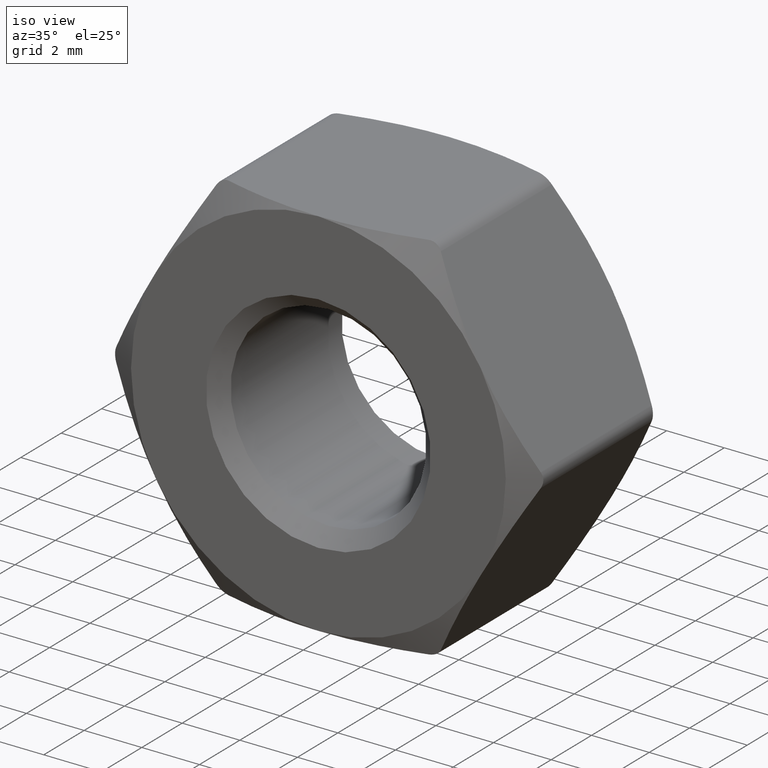
[diagram: clean part render]
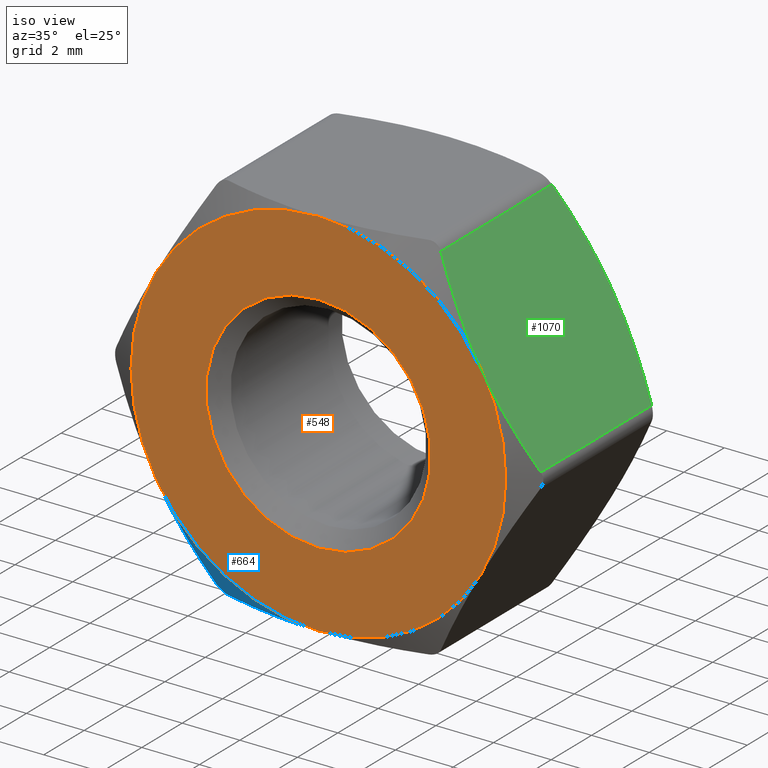
[diagram: same view with three faces highlighted in distinct colors, each labeled with its STEP entity id]
A machine part, iso view with three faces highlighted in distinct colors.
Their STEP definitions:

[orange] entity #548 — the highlighted planar face has unit normal (0, 1, 0).
#43 = ORIENTED_EDGE ( 'NONE', *, *, #1455, .T. ) ;
#52 = DIRECTION ( 'NONE',  ( -0.0000000000000000000, -1.000000000000000000, -0.0000000000000000000 ) ) ;
#65 = EDGE_LOOP ( 'NONE', ( #859 ) ) ;
#80 = AXIS2_PLACEMENT_3D ( 'NONE', #1158, #896, #1403 ) ;
#88 = ORIENTED_EDGE ( 'NONE', *, *, #1248, .T. ) ;
#120 = DIRECTION ( 'NONE',  ( 1.000000000000000000, -1.334402673828313300E-016, 0.0000000000000000000 ) ) ;
#143 = FACE_OUTER_BOUND ( 'NONE', #975, .T. ) ;
#144 = VERTEX_POINT ( 'NONE', #215 ) ;
#189 = CARTESIAN_POINT ( 'NONE',  ( -3.386450907888041400E-016, -3.250000000000000000, 1.173101005959981900E-015 ) ) ;
#201 = CARTESIAN_POINT ( 'NONE',  ( 0.0000000000000000000, -3.250000000000000000, 0.0000000000000000000 ) ) ;
#215 = CARTESIAN_POINT ( 'NONE',  ( -3.386450907888040000E-016, -3.249999999999998700, -6.499999999999999100 ) ) ;
#216 = AXIS2_PLACEMENT_3D ( 'NONE', #1112, #862, #120 ) ;
#257 = VERTEX_POINT ( 'NONE', #1442 ) ;
#302 = ORIENTED_EDGE ( 'NONE', *, *, #1026, .T. ) ;
#304 = EDGE_CURVE ( 'NONE', #873, #997, #1629, .T. ) ;
#342 = ORIENTED_EDGE ( 'NONE', *, *, #621, .T. ) ;
#406 = CARTESIAN_POINT ( 'NONE',  ( -3.386450907888041400E-016, -3.250000000000000000, 1.173101005959981900E-015 ) ) ;
#493 = AXIS2_PLACEMENT_3D ( 'NONE', #406, #770, #520 ) ;
#510 = DIRECTION ( 'NONE',  ( 0.0000000000000000000, 0.0000000000000000000, 1.000000000000000000 ) ) ;
#518 = CARTESIAN_POINT ( 'NONE',  ( -3.386450907888041400E-016, -3.250000000000000000, 1.173101005959981900E-015 ) ) ;
#520 = DIRECTION ( 'NONE',  ( 0.0000000000000000000, 0.0000000000000000000, 1.000000000000000000 ) ) ;
#543 = CIRCLE ( 'NONE', #781, 6.499999999999997300 ) ;
#548 = ADVANCED_FACE ( 'NONE', ( #874, #143 ), #1024, .F. ) ;
#621 = EDGE_CURVE ( 'NONE', #837, #873, #653, .T. ) ;
#653 = CIRCLE ( 'NONE', #493, 6.499999999999997300 ) ;
#657 = CARTESIAN_POINT ( 'NONE',  ( 5.629165124598849900, -3.249999999999999100, -3.250000000000001300 ) ) ;
#702 = CIRCLE ( 'NONE', #80, 6.499999999999997300 ) ;
#765 = DIRECTION ( 'NONE',  ( 0.0000000000000000000, 1.000000000000000000, 0.0000000000000000000 ) ) ;
#770 = DIRECTION ( 'NONE',  ( -0.0000000000000000000, -1.000000000000000000, -0.0000000000000000000 ) ) ;
#773 = CIRCLE ( 'NONE', #1043, 6.499999999999997300 ) ;
#781 = AXIS2_PLACEMENT_3D ( 'NONE', #518, #1288, #510 ) ;
#793 = CARTESIAN_POINT ( 'NONE',  ( 5.629165124598850800, -3.249999999999999100, 3.249999999999999600 ) ) ;
#827 = DIRECTION ( 'NONE',  ( 0.0000000000000000000, 0.0000000000000000000, 1.000000000000000000 ) ) ;
#831 = CARTESIAN_POINT ( 'NONE',  ( -3.386450907888040000E-016, -3.249999999999998700, 6.499999999999999100 ) ) ;
#837 = VERTEX_POINT ( 'NONE', #657 ) ;
#839 = AXIS2_PLACEMENT_3D ( 'NONE', #189, #52, #1080 ) ;
#843 = CARTESIAN_POINT ( 'NONE',  ( -3.386450907888041400E-016, -3.250000000000000000, 1.173101005959981900E-015 ) ) ;
#847 = DIRECTION ( 'NONE',  ( 1.776356839400250500E-015, 0.0000000000000000000, 1.000000000000000000 ) ) ;
#859 = ORIENTED_EDGE ( 'NONE', *, *, #905, .T. ) ;
#862 = DIRECTION ( 'NONE',  ( -1.041984894734782400E-016, -1.000000000000000000, -0.0000000000000000000 ) ) ;
#873 = VERTEX_POINT ( 'NONE', #793 ) ;
#874 = FACE_BOUND ( 'NONE', #65, .T. ) ;
#876 = VERTEX_POINT ( 'NONE', #1547 ) ;
#895 = CIRCLE ( 'NONE', #1499, 3.899999999999999500 ) ;
#896 = DIRECTION ( 'NONE',  ( -0.0000000000000000000, -1.000000000000000000, -0.0000000000000000000 ) ) ;
#905 = EDGE_CURVE ( 'NONE', #1260, #1260, #895, .T. ) ;
#937 = CIRCLE ( 'NONE', #839, 6.499999999999997300 ) ;
#975 = EDGE_LOOP ( 'NONE', ( #1495, #43, #302, #1335, #88, #342 ) ) ;
#997 = VERTEX_POINT ( 'NONE', #831 ) ;
#1024 = PLANE ( 'NONE',  #1528 ) ;
#1026 = EDGE_CURVE ( 'NONE', #257, #876, #937, .T. ) ;
#1043 = AXIS2_PLACEMENT_3D ( 'NONE', #843, #1484, #847 ) ;
#1080 = DIRECTION ( 'NONE',  ( 0.0000000000000000000, 0.0000000000000000000, 1.000000000000000000 ) ) ;
#1112 = CARTESIAN_POINT ( 'NONE',  ( -3.386450907888041400E-016, -3.249999999999998700, 0.0000000000000000000 ) ) ;
#1154 = DIRECTION ( 'NONE',  ( 0.0000000000000000000, -0.0000000000000000000, 1.000000000000000000 ) ) ;
#1158 = CARTESIAN_POINT ( 'NONE',  ( -3.386450907888041400E-016, -3.250000000000000000, 1.173101005959981900E-015 ) ) ;
#1220 = DIRECTION ( 'NONE',  ( 0.0000000000000000000, 1.000000000000000000, 0.0000000000000000000 ) ) ;
#1248 = EDGE_CURVE ( 'NONE', #144, #837, #773, .T. ) ;
#1260 = VERTEX_POINT ( 'NONE', #1428 ) ;
#1288 = DIRECTION ( 'NONE',  ( -0.0000000000000000000, -1.000000000000000000, -0.0000000000000000000 ) ) ;
#1335 = ORIENTED_EDGE ( 'NONE', *, *, #1523, .T. ) ;
#1403 = DIRECTION ( 'NONE',  ( 1.776356839400250500E-015, 0.0000000000000000000, 1.000000000000000000 ) ) ;
#1410 = CARTESIAN_POINT ( 'NONE',  ( 0.0000000000000000000, -3.250000000000000000, 0.0000000000000000000 ) ) ;
#1428 = CARTESIAN_POINT ( 'NONE',  ( 0.0000000000000000000, -3.250000000000000000, 3.899999999999999500 ) ) ;
#1442 = CARTESIAN_POINT ( 'NONE',  ( -5.629165124598849000, -3.249999999999998200, 3.250000000000001800 ) ) ;
#1455 = EDGE_CURVE ( 'NONE', #997, #257, #543, .T. ) ;
#1484 = DIRECTION ( 'NONE',  ( -0.0000000000000000000, -1.000000000000000000, -0.0000000000000000000 ) ) ;
#1495 = ORIENTED_EDGE ( 'NONE', *, *, #304, .T. ) ;
#1499 = AXIS2_PLACEMENT_3D ( 'NONE', #201, #1220, #827 ) ;
#1523 = EDGE_CURVE ( 'NONE', #876, #144, #702, .T. ) ;
#1528 = AXIS2_PLACEMENT_3D ( 'NONE', #1410, #765, #1154 ) ;
#1547 = CARTESIAN_POINT ( 'NONE',  ( -5.629165124598851700, -3.249999999999998200, -3.249999999999998200 ) ) ;
#1629 = CIRCLE ( 'NONE', #216, 6.499999999999999100 ) ;

[blue] entity #664 — the highlighted conical surface has half-angle 60 deg.
#16 = CARTESIAN_POINT ( 'NONE',  ( -3.897114317028938000, -2.750326475674317100, -6.250000000001794100 ) ) ;
#48 = EDGE_CURVE ( 'NONE', #144, #1075, #484, .T. ) ;
#61 = CARTESIAN_POINT ( 'NONE',  ( -2.320763838972457200, -3.031023087752009900, -6.500000000000001800 ) ) ;
#80 = AXIS2_PLACEMENT_3D ( 'NONE', #1158, #896, #1403 ) ;
#103 = CARTESIAN_POINT ( 'NONE',  ( -3.464101615138761100, -2.750326475674606600, -6.500000000000000900 ) ) ;
#128 = CARTESIAN_POINT ( 'NONE',  ( -3.854141261532512800, -2.726988866944858100, -6.324431515478076800 ) ) ;
#137 = CARTESIAN_POINT ( 'NONE',  ( -3.464101615138761100, -2.750326475674606600, -6.500000000000000900 ) ) ;
#144 = VERTEX_POINT ( 'NONE', #215 ) ;
#157 = AXIS2_PLACEMENT_3D ( 'NONE', #760, #638, #1018 ) ;
#215 = CARTESIAN_POINT ( 'NONE',  ( -3.386450907888040000E-016, -3.249999999999998700, -6.499999999999999100 ) ) ;
#276 = CARTESIAN_POINT ( 'NONE',  ( -3.897114317028938000, -2.750326475674317100, -6.250000000001794100 ) ) ;
#385 = EDGE_LOOP ( 'NONE', ( #698, #550, #1093, #1116 ) ) ;
#398 = B_SPLINE_CURVE_WITH_KNOTS ( 'NONE', 3,
 ( #276, #786, #542, #1312 ),
 .UNSPECIFIED., .F., .F.,
 ( 4, 4 ),
 ( 0.0002974810109325099900, 0.003797433802554442000 ),
 .UNSPECIFIED. ) ;
#484 = B_SPLINE_CURVE_WITH_KNOTS ( 'NONE', 3,
 ( #1304, #718, #1576, #61, #953, #799 ),
 .UNSPECIFIED., .F., .F.,
 ( 4, 2, 4 ),
 ( 0.006539901453184519300, 0.008284478935818399800, 0.01002905641845228100 ),
 .UNSPECIFIED. ) ;
#509 = EDGE_CURVE ( 'NONE', #1316, #1075, #1211, .T. ) ;
#542 = CARTESIAN_POINT ( 'NONE',  ( -5.039851529400916500, -3.250000000000001800, -4.270721088473901100 ) ) ;
#550 = ORIENTED_EDGE ( 'NONE', *, *, #509, .T. ) ;
#638 = DIRECTION ( 'NONE',  ( 1.041984894734782400E-016, 1.000000000000000000, 0.0000000000000000000 ) ) ;
#664 = ADVANCED_FACE ( 'NONE', ( #1172 ), #1294, .T. ) ;
#698 = ORIENTED_EDGE ( 'NONE', *, *, #784, .F. ) ;
#702 = CIRCLE ( 'NONE', #80, 6.499999999999997300 ) ;
#718 = CARTESIAN_POINT ( 'NONE',  ( -0.5843172141143628800, -3.249999999999997300, -6.500000000000000000 ) ) ;
#760 = CARTESIAN_POINT ( 'NONE',  ( -3.386450907888041400E-016, -3.249999999999998700, 0.0000000000000000000 ) ) ;
#784 = EDGE_CURVE ( 'NONE', #1316, #876, #398, .T. ) ;
#786 = CARTESIAN_POINT ( 'NONE',  ( -4.464303344479560600, -3.058352876056137100, -5.267599786961736400 ) ) ;
#799 = CARTESIAN_POINT ( 'NONE',  ( -3.464101615138761100, -2.750326475674606600, -6.500000000000000900 ) ) ;
#865 = CARTESIAN_POINT ( 'NONE',  ( -3.897114317028938000, -2.750326475674317100, -6.250000000001794100 ) ) ;
#876 = VERTEX_POINT ( 'NONE', #1547 ) ;
#896 = DIRECTION ( 'NONE',  ( -0.0000000000000000000, -1.000000000000000000, -0.0000000000000000000 ) ) ;
#903 = CARTESIAN_POINT ( 'NONE',  ( -3.790687565813049400, -2.714143658310132600, -6.388705627901938300 ) ) ;
#953 = CARTESIAN_POINT ( 'NONE',  ( -2.898327047151626700, -2.903955596805489300, -6.500000000000000900 ) ) ;
#1018 = DIRECTION ( 'NONE',  ( 1.000000000000000000, -1.334402673828313300E-016, 0.0000000000000000000 ) ) ;
#1027 = CARTESIAN_POINT ( 'NONE',  ( -3.550077289892499700, -2.726980839270276100, -6.499999999999991100 ) ) ;
#1075 = VERTEX_POINT ( 'NONE', #103 ) ;
#1093 = ORIENTED_EDGE ( 'NONE', *, *, #48, .F. ) ;
#1116 = ORIENTED_EDGE ( 'NONE', *, *, #1523, .F. ) ;
#1158 = CARTESIAN_POINT ( 'NONE',  ( -3.386450907888041400E-016, -3.250000000000000000, 1.173101005959981900E-015 ) ) ;
#1172 = FACE_OUTER_BOUND ( 'NONE', #385, .T. ) ;
#1211 = B_SPLINE_CURVE_WITH_KNOTS ( 'NONE', 3,
 ( #16, #128, #903, #1271, #1027, #137 ),
 .UNSPECIFIED., .F., .F.,
 ( 4, 2, 4 ),
 ( 2.009003396756986000E-015, 0.0002636355533731606300, 0.0005272711067443122300 ),
 .UNSPECIFIED. ) ;
#1271 = CARTESIAN_POINT ( 'NONE',  ( -3.638281588876213700, -2.714059782672264600, -6.476877117389370200 ) ) ;
#1294 = CONICAL_SURFACE ( 'NONE', #157, 6.499999999999999100, 1.047197551196603000 ) ;
#1304 = CARTESIAN_POINT ( 'NONE',  ( -3.386450907888040000E-016, -3.249999999999998700, -6.499999999999999100 ) ) ;
#1312 = CARTESIAN_POINT ( 'NONE',  ( -5.629165124598851700, -3.249999999999998200, -3.249999999999998200 ) ) ;
#1316 = VERTEX_POINT ( 'NONE', #865 ) ;
#1403 = DIRECTION ( 'NONE',  ( 1.776356839400250500E-015, 0.0000000000000000000, 1.000000000000000000 ) ) ;
#1523 = EDGE_CURVE ( 'NONE', #876, #144, #702, .T. ) ;
#1547 = CARTESIAN_POINT ( 'NONE',  ( -5.629165124598851700, -3.249999999999998200, -3.249999999999998200 ) ) ;
#1576 = CARTESIAN_POINT ( 'NONE',  ( -1.165154007745678100, -3.203824239726177600, -6.500000000000001800 ) ) ;

[green] entity #1070 — the highlighted planar face has unit normal (-0.866, 0, -0.5).
#66 = PLANE ( 'NONE',  #1385 ) ;
#165 = EDGE_CURVE ( 'NONE', #873, #1136, #1334, .T. ) ;
#170 = CARTESIAN_POINT ( 'NONE',  ( 5.775913707290541800, -3.250000000000000000, 2.995823998839283400 ) ) ;
#210 = CARTESIAN_POINT ( 'NONE',  ( 5.334965229149906600, 3.238358288205306600, 3.759569166499034900 ) ) ;
#213 = CARTESIAN_POINT ( 'NONE',  ( 3.897114317029981600, 2.750326475674878900, 6.249999999999998200 ) ) ;
#252 = CARTESIAN_POINT ( 'NONE',  ( 6.794026904718143600, 3.058352876056135800, 1.232400213038266700 ) ) ;
#341 = CARTESIAN_POINT ( 'NONE',  ( 5.043057695669504300, 3.193121803873831200, 4.265167845599208400 ) ) ;
#357 = CARTESIAN_POINT ( 'NONE',  ( 5.482416541907172200, 3.250000000000002200, 3.504176001160724100 ) ) ;
#365 = ORIENTED_EDGE ( 'NONE', *, *, #165, .T. ) ;
#367 = CARTESIAN_POINT ( 'NONE',  ( 7.361215932167731100, 3.250000000000000000, 0.2500000000000045500 ) ) ;
#404 = VECTOR ( 'NONE', #1381, 1000.000000000000000 ) ;
#407 = ORIENTED_EDGE ( 'NONE', *, *, #431, .T. ) ;
#431 = EDGE_CURVE ( 'NONE', #1136, #492, #813, .T. ) ;
#441 = CARTESIAN_POINT ( 'NONE',  ( 6.360320613116885900, -3.159567907072293700, 1.983601545653930700 ) ) ;
#492 = VERTEX_POINT ( 'NONE', #615 ) ;
#500 = CARTESIAN_POINT ( 'NONE',  ( 5.629165124598850800, 3.249999999999999100, 3.249999999999999600 ) ) ;
#514 = DIRECTION ( 'NONE',  ( 0.0000000000000000000, -1.000000000000000000, 0.0000000000000000000 ) ) ;
#577 = VERTEX_POINT ( 'NONE', #1406 ) ;
#589 = CARTESIAN_POINT ( 'NONE',  ( 5.629165124598850800, 3.249999999999999100, 3.249999999999999600 ) ) ;
#591 = EDGE_CURVE ( 'NONE', #1566, #787, #1254, .T. ) ;
#615 = CARTESIAN_POINT ( 'NONE',  ( 7.361215932168766700, 2.750326475674317100, 0.2499999999982097700 ) ) ;
#617 = B_SPLINE_CURVE_WITH_KNOTS ( 'NONE', 3,
 ( #868, #252, #1008, #500 ),
 .UNSPECIFIED., .F., .F.,
 ( 4, 4 ),
 ( 0.0002974810109325099900, 0.003797433802554438500 ),
 .UNSPECIFIED. ) ;
#651 = ORIENTED_EDGE ( 'NONE', *, *, #1369, .T. ) ;
#668 = EDGE_LOOP ( 'NONE', ( #365, #407, #651, #1233, #870, #1440 ) ) ;
#703 = CARTESIAN_POINT ( 'NONE',  ( 4.464303344479567700, -3.058352876056134900, 5.267599786961736400 ) ) ;
#721 = CARTESIAN_POINT ( 'NONE',  ( 4.465291406935476100, 3.029614908576544300, 5.265888412587046700 ) ) ;
#787 = VERTEX_POINT ( 'NONE', #1061 ) ;
#793 = CARTESIAN_POINT ( 'NONE',  ( 5.629165124598850800, -3.249999999999999100, 3.249999999999999600 ) ) ;
#803 = CARTESIAN_POINT ( 'NONE',  ( 7.078287489049791300, -2.903977949313086600, 0.7400464383866343100 ) ) ;
#813 = LINE ( 'NONE', #367, #404 ) ;
#836 = VECTOR ( 'NONE', #514, 1000.000000000000000 ) ;
#868 = CARTESIAN_POINT ( 'NONE',  ( 7.361215932168766700, 2.750326475674317100, 0.2499999999982097700 ) ) ;
#870 = ORIENTED_EDGE ( 'NONE', *, *, #591, .T. ) ;
#873 = VERTEX_POINT ( 'NONE', #793 ) ;
#931 = CARTESIAN_POINT ( 'NONE',  ( 5.629165124598850800, -3.249999999999999100, 3.249999999999999600 ) ) ;
#943 = EDGE_CURVE ( 'NONE', #787, #873, #1127, .T. ) ;
#952 = DIRECTION ( 'NONE',  ( -0.8660254037844388200, 0.0000000000000000000, -0.4999999999999998300 ) ) ;
#964 = CARTESIAN_POINT ( 'NONE',  ( 5.039851529400921800, -3.249999999999999100, 4.270721088473902900 ) ) ;
#979 = DIRECTION ( 'NONE',  ( -0.4999999999999997800, 0.0000000000000000000, 0.8660254037844387100 ) ) ;
#1008 = CARTESIAN_POINT ( 'NONE',  ( 6.218478719796789500, 3.250000000000000400, 2.229278911526101600 ) ) ;
#1010 = CARTESIAN_POINT ( 'NONE',  ( 3.897114317029982000, 3.250000000000000000, 6.249999999999997300 ) ) ;
#1038 = CARTESIAN_POINT ( 'NONE',  ( 3.897114317029981600, 2.750326475674878900, 6.249999999999998200 ) ) ;
#1061 = CARTESIAN_POINT ( 'NONE',  ( 3.897114317028946000, -2.750326475674316700, 6.250000000001792300 ) ) ;
#1064 = CARTESIAN_POINT ( 'NONE',  ( 7.361215932167731100, -2.750326475674879300, 0.2500000000000047200 ) ) ;
#1070 = ADVANCED_FACE ( 'NONE', ( #1194 ), #66, .F. ) ;
#1105 = CARTESIAN_POINT ( 'NONE',  ( 4.180042760147919100, 2.903977949313086600, 5.759953561613370400 ) ) ;
#1109 = CARTESIAN_POINT ( 'NONE',  ( 4.898009636080826300, 3.159567907072293300, 4.516398454346075100 ) ) ;
#1110 = EDGE_CURVE ( 'NONE', #577, #1566, #1408, .T. ) ;
#1127 = B_SPLINE_CURVE_WITH_KNOTS ( 'NONE', 3,
 ( #1471, #703, #964, #1329 ),
 .UNSPECIFIED., .F., .F.,
 ( 4, 4 ),
 ( 0.0002974810109325080900, 0.003797433802554433700 ),
 .UNSPECIFIED. ) ;
#1136 = VERTEX_POINT ( 'NONE', #1599 ) ;
#1194 = FACE_OUTER_BOUND ( 'NONE', #668, .T. ) ;
#1201 = CARTESIAN_POINT ( 'NONE',  ( 3.752776749732575900, 3.250000000000000000, 6.499999999999997300 ) ) ;
#1203 = CARTESIAN_POINT ( 'NONE',  ( 5.923365020047807400, -3.238358288205307000, 2.740430833500970800 ) ) ;
#1229 = CARTESIAN_POINT ( 'NONE',  ( 6.215272553528207800, -3.193121803873830700, 2.234832154400797000 ) ) ;
#1233 = ORIENTED_EDGE ( 'NONE', *, *, #1110, .T. ) ;
#1235 = CARTESIAN_POINT ( 'NONE',  ( 6.793038842262233400, -3.029614908576546500, 1.234111587412956200 ) ) ;
#1254 = LINE ( 'NONE', #1010, #836 ) ;
#1329 = CARTESIAN_POINT ( 'NONE',  ( 5.629165124598850800, -3.249999999999999100, 3.249999999999999600 ) ) ;
#1334 = B_SPLINE_CURVE_WITH_KNOTS ( 'NONE', 3,
 ( #931, #170, #1203, #1229, #441, #1235, #803, #1064 ),
 .UNSPECIFIED., .F., .F.,
 ( 4, 2, 2, 4 ),
 ( 0.003797433802554433700, 0.004668978453557800500, 0.005540523104561167300, 0.007283612406567902700 ),
 .UNSPECIFIED. ) ;
#1369 = EDGE_CURVE ( 'NONE', #492, #577, #617, .T. ) ;
#1381 = DIRECTION ( 'NONE',  ( -0.0000000000000000000, 1.000000000000000000, -0.0000000000000000000 ) ) ;
#1385 = AXIS2_PLACEMENT_3D ( 'NONE', #1201, #952, #979 ) ;
#1406 = CARTESIAN_POINT ( 'NONE',  ( 5.629165124598850800, 3.249999999999999100, 3.249999999999999600 ) ) ;
#1408 = B_SPLINE_CURVE_WITH_KNOTS ( 'NONE', 3,
 ( #589, #357, #210, #341, #1109, #721, #1105, #213 ),
 .UNSPECIFIED., .F., .F.,
 ( 4, 2, 2, 4 ),
 ( 0.003797433802554438500, 0.004668978453557804000, 0.005540523104561170800, 0.007283612406567905300 ),
 .UNSPECIFIED. ) ;
#1440 = ORIENTED_EDGE ( 'NONE', *, *, #943, .T. ) ;
#1471 = CARTESIAN_POINT ( 'NONE',  ( 3.897114317028946000, -2.750326475674316700, 6.250000000001792300 ) ) ;
#1566 = VERTEX_POINT ( 'NONE', #1038 ) ;
#1599 = CARTESIAN_POINT ( 'NONE',  ( 7.361215932167731100, -2.750326475674879300, 0.2500000000000047200 ) ) ;